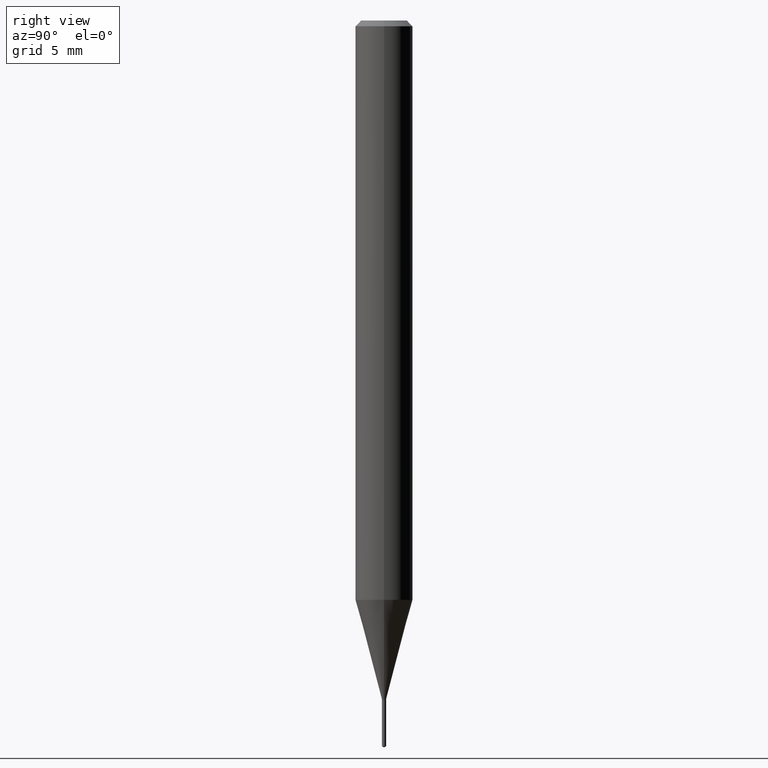
[diagram: clean part render]
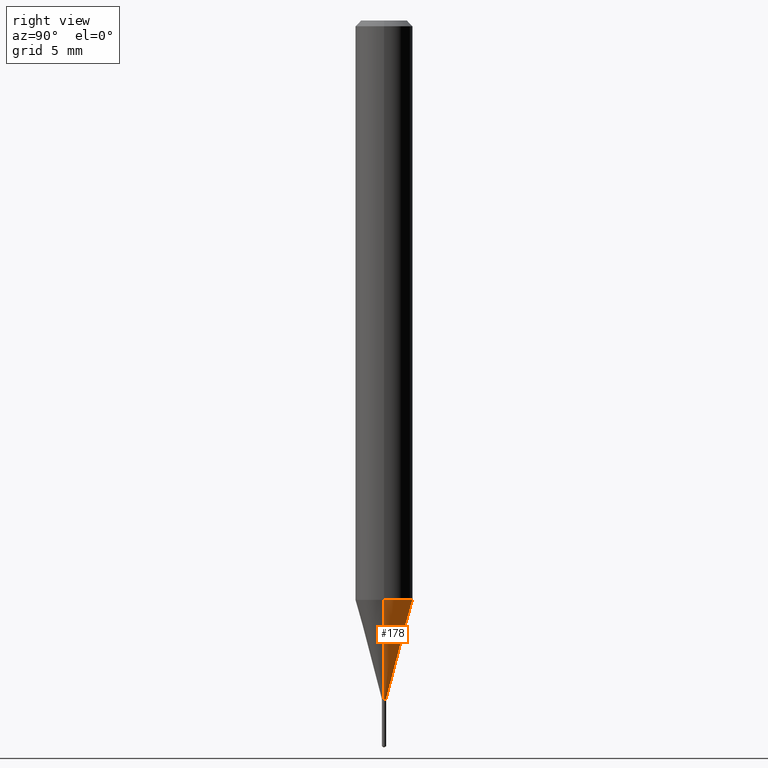
[diagram: same view with one face highlighted and labeled with its STEP entity id]
A machine part, right view. The second image highlights one B-rep face of the part: STEP entity #178.
In plain terms, the highlighted conical surface has half-angle 15 deg.
Its self-contained STEP definition (entity closure, byte-faithful):
#14 = EDGE_CURVE ( 'NONE', #485, #76, #294, .T. ) ;
#29 = AXIS2_PLACEMENT_3D ( 'NONE', #216, #284, #278 ) ;
#31 = CARTESIAN_POINT ( 'NONE',  ( 0.004349999999999999700, -4.905880429208502600E-15, -1.396399999999999864 ) ) ;
#35 = ORIENTED_EDGE ( 'NONE', *, *, #14, .T. ) ;
#59 = VECTOR ( 'NONE', #410, 39.37007874015747433 ) ;
#76 = VERTEX_POINT ( 'NONE', #438 ) ;
#81 = AXIS2_PLACEMENT_3D ( 'NONE', #334, #224, #173 ) ;
#134 = AXIS2_PLACEMENT_3D ( 'NONE', #335, #367, #217 ) ;
#173 = DIRECTION ( 'NONE',  ( 1.000000000000000000, -6.982962677686209913E-15, 0.000000000000000000 ) ) ;
#178 = ADVANCED_FACE ( 'NONE', ( #371 ), #232, .T. ) ;
#188 = CARTESIAN_POINT ( 'NONE',  ( -0.004349999999999999700, -4.844595932555003539E-15, -1.396399999999999864 ) ) ;
#195 = EDGE_LOOP ( 'NONE', ( #35, #227, #322, #461 ) ) ;
#216 = CARTESIAN_POINT ( 'NONE',  ( 3.414852640956924410E-29, -4.875504541560567649E-15, -1.396399999999999864 ) ) ;
#217 = DIRECTION ( 'NONE',  ( 1.000000000000000000, -6.982962677686272233E-15, 0.000000000000000000 ) ) ;
#219 = CARTESIAN_POINT ( 'NONE',  ( 0.05905000000000015098, -4.575086387139747161E-15, -1.192256820825982278 ) ) ;
#221 = LINE ( 'NONE', #31, #59 ) ;
#224 = DIRECTION ( 'NONE',  ( -2.445468806185136597E-29, 3.491481338843145583E-15, 1.000000000000000000 ) ) ;
#227 = ORIENTED_EDGE ( 'NONE', *, *, #443, .T. ) ;
#232 = CONICAL_SURFACE ( 'NONE', #81, 0.004349999999999999700, 0.2617993877991500740 ) ;
#247 = VERTEX_POINT ( 'NONE', #219 ) ;
#249 = EDGE_CURVE ( 'NONE', #485, #247, #221, .T. ) ;
#276 = EDGE_CURVE ( 'NONE', #247, #388, #287, .T. ) ;
#278 = DIRECTION ( 'NONE',  ( 1.000000000000000000, -6.982962677686209913E-15, 0.000000000000000000 ) ) ;
#284 = DIRECTION ( 'NONE',  ( -2.445468806185136597E-29, 3.491481338843145583E-15, 1.000000000000000000 ) ) ;
#287 = CIRCLE ( 'NONE', #134, 0.05905000000000014404 ) ;
#294 = CIRCLE ( 'NONE', #29, 0.004349999999999999700 ) ;
#322 = ORIENTED_EDGE ( 'NONE', *, *, #276, .F. ) ;
#334 = CARTESIAN_POINT ( 'NONE',  ( 3.414852640956924410E-29, -4.875504541560567649E-15, -1.396399999999999864 ) ) ;
#335 = CARTESIAN_POINT ( 'NONE',  ( 2.915626864291401219E-29, -4.162742441022373029E-15, -1.192256820825982278 ) ) ;
#339 = DIRECTION ( 'NONE',  ( -0.2588190451025213501, 5.211531920934551042E-15, 0.9659258262890682012 ) ) ;
#346 = CARTESIAN_POINT ( 'NONE',  ( -0.05905000000000015098, -3.743166955556031959E-15, -1.192256820825982278 ) ) ;
#350 = LINE ( 'NONE', #188, #447 ) ;
#367 = DIRECTION ( 'NONE',  ( -2.445468806185136597E-29, 3.491481338843145583E-15, 1.000000000000000000 ) ) ;
#371 = FACE_OUTER_BOUND ( 'NONE', #195, .T. ) ;
#388 = VERTEX_POINT ( 'NONE', #346 ) ;
#410 = DIRECTION ( 'NONE',  ( 0.2588190451025213501, 1.565188264969621968E-15, 0.9659258262890682012 ) ) ;
#438 = CARTESIAN_POINT ( 'NONE',  ( -0.004349999999999999700, -4.845992525090540742E-15, -1.396399999999999864 ) ) ;
#443 = EDGE_CURVE ( 'NONE', #76, #388, #350, .T. ) ;
#447 = VECTOR ( 'NONE', #339, 39.37007874015747433 ) ;
#461 = ORIENTED_EDGE ( 'NONE', *, *, #249, .F. ) ;
#470 = CARTESIAN_POINT ( 'NONE',  ( 0.004349999999999999700, -4.905880429208502600E-15, -1.396399999999999864 ) ) ;
#485 = VERTEX_POINT ( 'NONE', #470 ) ;